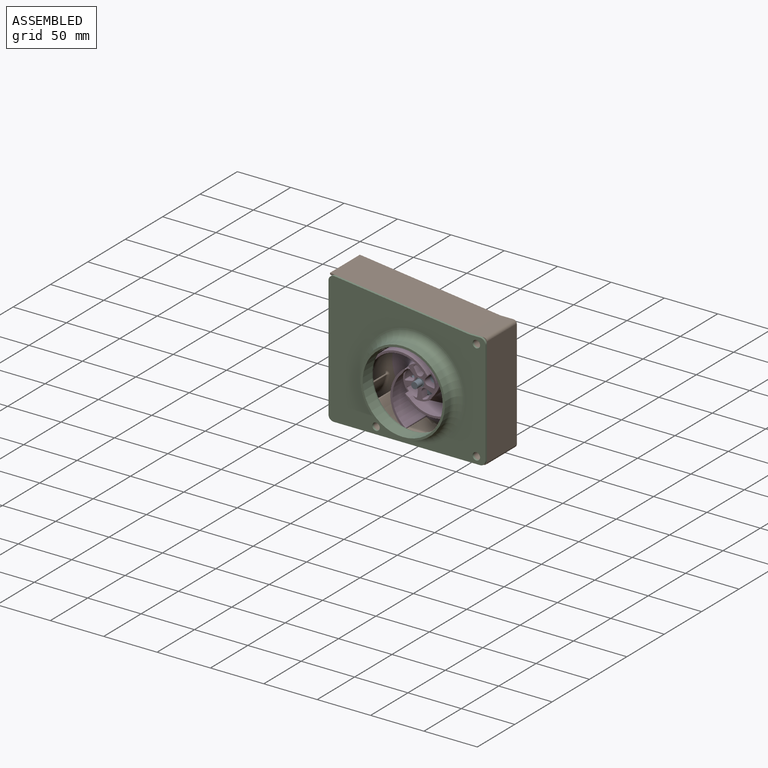
[diagram: assembled view]
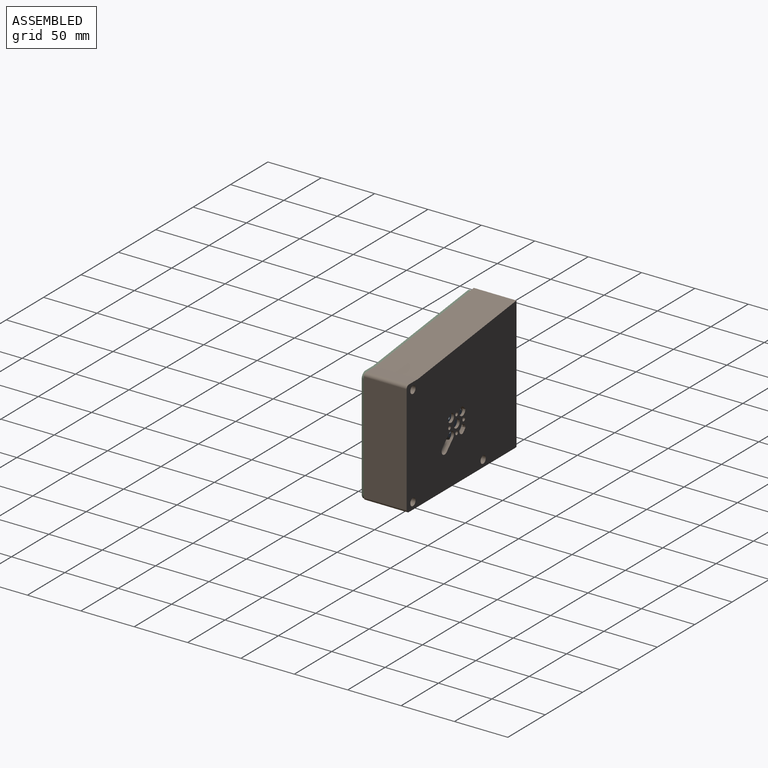
[diagram: assembled view, second angle]
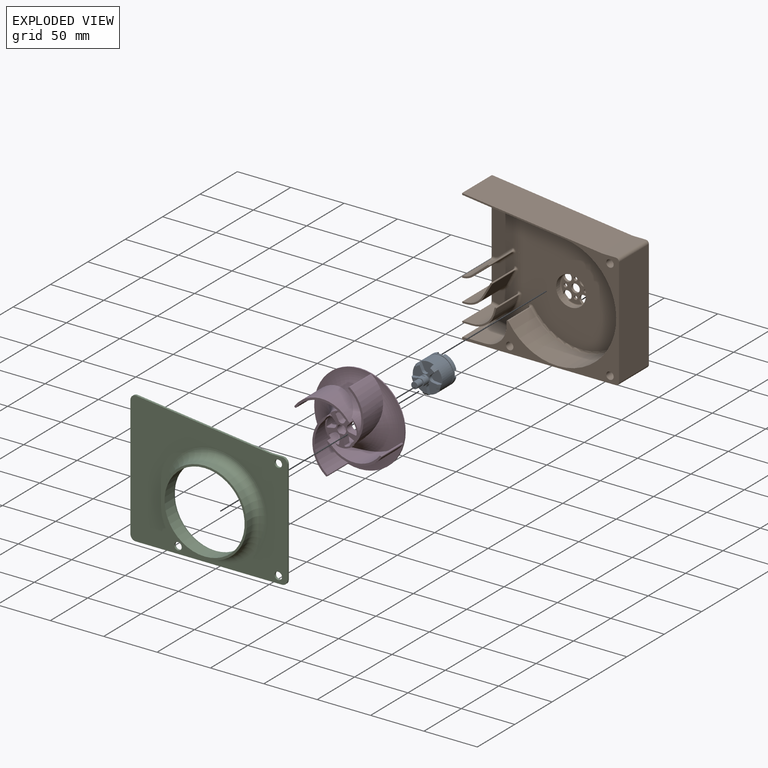
[diagram: exploded view]
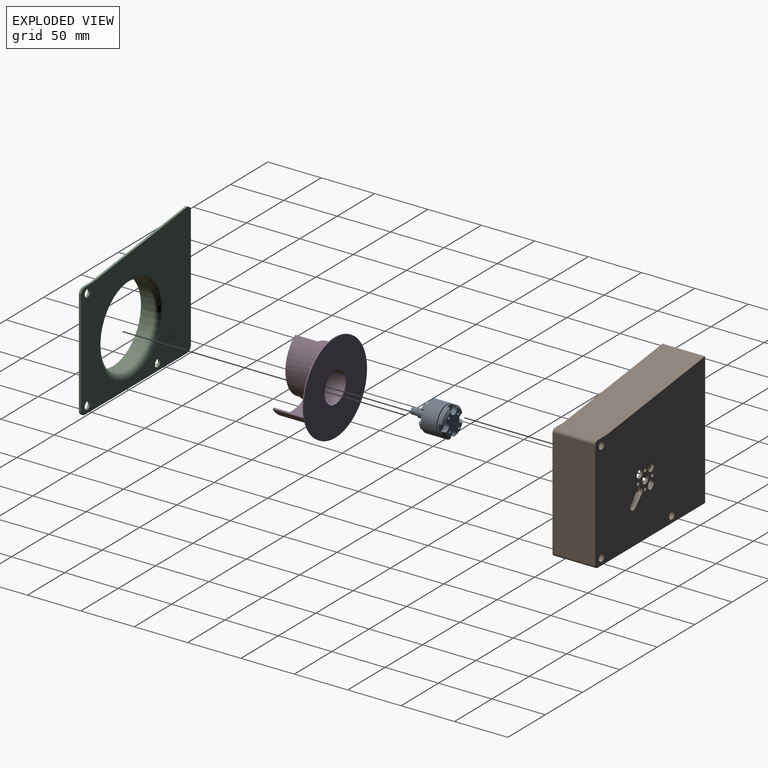
[diagram: exploded view, second angle]
ASSEMBLY  parts=4 mates=3
PART A: 58 faces, bbox 27.7x27.7x38.8 mm
  f0: cone r=13.85mm half-angle=45deg, axis (0,0,1), area 36.5mm2, adj f1,f4,f9,f10
  f1: cylinder r=4mm len=8mm, axis (0,0,-1), area 79.1mm2, adj f0,f2,f9,f10,f11
  f2: plane 8x7.1mm, normal (0,0,-1), area 46.7mm2, adj f1,f10
  f3: cone r=13.85mm half-angle=45deg, axis (0,0,1), area 36.5mm2, adj f4,f7,f9,f10
  f4: cylinder r=4mm len=8mm, axis (0,0,-1), area 79.1mm2, adj f0,f3,f5,f9,f10
  f5: plane 8x7.1mm, normal (0,0,-1), area 46.7mm2, adj f4,f10
  f6: cone r=13.85mm half-angle=45deg, axis (0,0,1), area 36.5mm2, adj f7,f9,f10,f57
  f7: cylinder r=4mm len=8mm, axis (0,0,-1), area 79.1mm2, adj f3,f6,f8,f9,f10
  f8: plane 8x7.1mm, normal (0,0,-1), area 46.7mm2, adj f7,f10
  f9: plane 22.32x22.32mm, normal (0,0,-1), area 293.1mm2, adj f0,f1,f3,f4,f6,f7,f11,f47
  f10: cylinder r=13.85mm len=27.7mm, axis (0,0,1), area 290.6mm2, adj f0,f1,f2,f3,f4,f5,f6,f7
  f11: cone r=13.85mm half-angle=45deg, axis (0,0,1), area 36.5mm2, adj f1,f9,f10,f57
  f12: cone r=11.85mm half-angle=45deg, axis (0,0,-1), area 14.3mm2, adj f13,f19,f32,f40
  f13: plane 6.71x3.5mm, normal (0.99,0.11,0), area 21.6mm2, adj f12,f15,f16,f32,f40
  f14: plane 4.98x4.56mm, normal (-0.74,0.67,0), area 21.6mm2, adj f15,f16,f32,f40,f45
  f15: cylinder r=3.3mm len=5.71mm, axis (0,0,1), area 26.4mm2, adj f13,f14,f16,f32
  f16: plane 11.02x9.73mm, normal (0,0,1), area 72.3mm2, adj f13,f14,f15,f40
  f17: cone r=11.85mm half-angle=45deg, axis (0,0,-1), area 14.3mm2, adj f18,f24,f32,f40
  f18: plane 6.62x3.5mm, normal (0.2,0.98,0), area 21.6mm2, adj f17,f20,f21,f32,f40
  f19: plane 5.87x3.5mm, normal (-0.87,-0.49,0), area 21.6mm2, adj f12,f20,f21,f32,f40
  f20: cylinder r=3.3mm len=4.92mm, axis (0,0,1), area 26.4mm2, adj f18,f19,f21,f32
  f21: plane 10.79x10.57mm, normal (0,0,1), area 72.3mm2, adj f18,f19,f20,f40
  f22: cone r=11.85mm half-angle=45deg, axis (0,0,-1), area 14.3mm2, adj f23,f29,f32,f40
  f23: plane 5.87x3.5mm, normal (-0.87,0.49,0), area 21.6mm2, adj f22,f25,f26,f32,f40
  f24: plane 6.62x3.5mm, normal (0.2,-0.98,0), area 21.6mm2, adj f17,f25,f26,f32,f40
  f25: cylinder r=3.3mm len=4.92mm, axis (0,0,1), area 26.4mm2, adj f23,f24,f26,f32
  f26: plane 10.79x10.57mm, normal (0,0,1), area 72.3mm2, adj f23,f24,f25,f40
  f27: cone r=11.85mm half-angle=45deg, axis (0,0,-1), area 14.3mm2, adj f28,f32,f40,f54
  f28: plane 4.98x4.56mm, normal (-0.74,-0.67,0), area 21.6mm2, adj f27,f30,f31,f32,f40
  f29: plane 6.71x3.5mm, normal (0.99,-0.11,0), area 21.6mm2, adj f22,f30,f31,f32,f40
  f30: cylinder r=3.3mm len=5.71mm, axis (0,0,1), area 26.4mm2, adj f28,f29,f31,f32
  f31: plane 11.02x9.73mm, normal (0,0,1), area 72.3mm2, adj f28,f29,f30,f40
  f32: plane 23.53x22.61mm, normal (0,0,1), area 140.4mm2, adj f12,f13,f14,f15,f17,f18,f19,f20
  f33: cylinder r=6.92mm len=13.85mm, axis (0,0,1), area 34.8mm2, adj f38,f39,f46,f48
  f34: cylinder r=4mm len=8mm, axis (0,0,1), area 135.5mm2, adj f32,f35,f41,f42,f43,f44
  f35: plane 8x7mm, normal (0,0,1), area 19.4mm2, adj f34,f36,f42,f43
  f36: cylinder r=3mm len=7mm, axis (0,0,1), area 131.9mm2, adj f35,f37
  f37: plane 6x6mm, normal (0,0,1), area 28.3mm2, adj f36
  f38: plane 27.7x27.7mm, normal (0,0,1), area 432.6mm2, adj f10,f33,f47,f49,f50,f51
  f39: plane 27.7x27.7mm, normal (0,0,-1), area 452mm2, adj f33,f40
  f40: cylinder r=13.85mm len=27.7mm, axis (0,0,1), area 1302.7mm2, adj f12,f13,f14,f16,f17,f18,f19,f21
  f41: plane 3.87x0.5mm, normal (0,0,1), area 1.3mm2, adj f34,f42
  f42: plane 5x3.87mm, normal (1,0,0), area 19.4mm2, adj f34,f35,f41
  f43: plane 5x3.87mm, normal (-1,0,0), area 19.4mm2, adj f34,f35,f44
  f44: plane 3.87x0.5mm, normal (0,0,1), area 1.3mm2, adj f34,f43
  f45: cone r=11.85mm half-angle=45deg, axis (0,0,-1), area 14.3mm2, adj f14,f32,f40,f53
  f46: cone r=0mm half-angle=59deg, axis (0,0,-1), area 0.2mm2, adj f33,f47
  f47: cylinder r=1.25mm len=6mm, axis (0,0,-1), area 47.1mm2, adj f9,f38,f46
  f48: cone r=0mm half-angle=59deg, axis (0,0,-1), area 0.2mm2, adj f33,f49
  f49: cylinder r=1.25mm len=6mm, axis (0,0,-1), area 47.1mm2, adj f9,f38,f48
  f50: cylinder r=1.25mm len=6mm, axis (0,0,-1), area 47.1mm2, adj f9,f38
  f51: cylinder r=1.25mm len=6mm, axis (0,0,-1), area 47.1mm2, adj f9,f38
  f52: plane 11.59x9.35mm, normal (0,0,1), area 72.3mm2, adj f40,f53,f54,f55
  f53: plane 6.15x3.5mm, normal (0.41,-0.91,0), area 21.6mm2, adj f32,f40,f45,f52,f55
  f54: plane 6.15x3.5mm, normal (0.41,0.91,0), area 21.6mm2, adj f27,f32,f40,f52,f55
  f55: cylinder r=3.3mm len=6mm, axis (0,0,1), area 26.4mm2, adj f32,f52,f53,f54
  f56: plane 8x7.1mm, normal (0,0,-1), area 46.7mm2, adj f10,f57
  f57: cylinder r=4mm len=8mm, axis (0,0,-1), area 79.1mm2, adj f6,f9,f10,f11,f56
PART B: 150 faces, bbox 151x40.7x127.7 mm
  f0: plane 147x124.17mm, normal (0,1,0), area 16445.6mm2, adj f1,f5,f6,f7,f8,f9,f10,f11
  f1: cylinder r=4mm len=6.83mm, axis (0,-1,0), area 31.4mm2, adj f0,f62,f98,f99
  f2: plane 26.39x24.94mm, normal (-0.26,-0.97,0), area 346.7mm2, adj f6,f69,f108,f109,f110,f130,f131,f132
  f3: plane 31.2x24.94mm, normal (-0.26,-0.97,0), area 413.2mm2, adj f6,f69,f121,f122,f123,f124,f147,f148
  f4: plane 112.65x107.15mm, normal (0,-1,0), area 9195.6mm2, adj f61,f69,f70,f71,f72,f73,f74,f80
  f5: plane 130.46x40mm, normal (0.12,0,0.99), area 5257.5mm2, adj f0,f6,f19,f75
  f6: plane 124.12x40.66mm, normal (-1,0,0), area 188.6mm2, adj f0,f2,f3,f5,f19,f27,f35,f36
  f7: plane 143.3x40mm, normal (0,0,-1), area 5732mm2, adj f0,f19,f58,f59
  f8: plane 102x40mm, normal (1,0,0), area 4080mm2, adj f0,f19,f59,f60
  f9: cylinder r=3.5mm len=40mm, axis (0,1,0), area 879.6mm2, adj f0,f19
  f10: cylinder r=3.5mm len=40mm, axis (0,1,0), area 879.6mm2, adj f0,f19
  f11: plane 40x11.1mm, normal (0,0,1), area 444.2mm2, adj f0,f19,f60,f75
  f12: cylinder r=3.5mm len=40mm, axis (0,1,0), area 879.6mm2, adj f0,f19
  f13: cylinder r=54.79mm len=109.17mm, axis (0,1,0), area 6507.2mm2, adj f18,f19,f55,f85
  f14: plane 29.5x0.41mm, normal (0,0,1), area 12.2mm2, adj f19,f55,f57,f83
  f15: plane 29.5x4.3mm, normal (-1,0,0), area 126.9mm2, adj f16,f19,f57,f81
  f16: cylinder r=20mm len=31.68mm, axis (0,1,0), area 942.4mm2, adj f15,f17,f19,f78,f79,f80
  f17: plane 37.24x20.88mm, normal (0,0,1), area 719.4mm2, adj f16,f19,f56,f77
  f18: plane 95.64x37.33mm, normal (-0.12,0,-0.99), area 2959.8mm2, adj f13,f19,f54,f86,f87,f88
  f19: plane 147x124.17mm, normal (0,-1,0), area 2270.6mm2, adj f5,f6,f7,f8,f9,f10,f11,f12
  f20: plane 37.24x9.3mm, normal (0,0,1), area 334.8mm2, adj f26,f27,f53,f109
  f21: plane 37.24x9.3mm, normal (0,0,-1), area 334.8mm2, adj f22,f27,f52,f119
  f22: cylinder r=21.5mm len=34.76mm, axis (0,1,0), area 888.1mm2, adj f21,f23,f27,f117,f118
  f23: plane 29.58x4.15mm, normal (0.97,0,-0.26), area 127.1mm2, adj f22,f27,f51,f116
  f24: plane 29.64x0.1mm, normal (0.26,0,0.97), area 3mm2, adj f27,f50,f51,f114
  f25: plane 30.24x4.15mm, normal (-0.97,0,0.26), area 129.6mm2, adj f26,f27,f50,f112
  f26: cylinder r=20mm len=34.76mm, axis (0,1,0), area 842.6mm2, adj f20,f25,f27,f110,f111
  f27: plane 31.9x21mm, normal (0,-1,0), area 62.8mm2, adj f6,f20,f21,f22,f23,f24,f25,f26
  f28: cylinder r=18.5mm len=36.63mm, axis (0,1,0), area 672.7mm2, adj f29,f34,f35,f123
  f29: plane 37.24x2.3mm, normal (0,0,1), area 85mm2, adj f28,f35,f46,f122
  f30: plane 37.24x2.3mm, normal (0,0,-1), area 85mm2, adj f31,f35,f47,f132
  f31: cylinder r=20mm len=36.63mm, axis (0,1,0), area 714mm2, adj f30,f32,f35,f131
  f32: plane 31.55x13.25mm, normal (0.87,0,-0.5), area 468.4mm2, adj f31,f35,f48,f129,f130
  f33: plane 30.02x0.09mm, normal (0.5,0,0.87), area 3mm2, adj f35,f48,f49,f127
  f34: plane 32.82x13.25mm, normal (-0.87,0,0.5), area 486.5mm2, adj f28,f35,f49,f124,f125
  f35: plane 28.06x24.35mm, normal (0,-1,0), area 58.3mm2, adj f6,f28,f29,f30,f31,f32,f33,f34
  f36: plane 37.43x0.1mm, normal (0,0,-1), area 3.7mm2, adj f6,f37,f42,f149
  f37: cylinder r=16mm len=37.4mm, axis (0,1,0), area 400.6mm2, adj f36,f38,f42,f148
  f38: plane 34.32x14.78mm, normal (0.64,0,-0.77), area 624.3mm2, adj f37,f42,f44,f146,f147
  f39: plane 30.37x0.08mm, normal (0.77,0,0.64), area 3mm2, adj f42,f43,f44,f139
  f40: plane 35.26x14.78mm, normal (-0.64,0,0.77), area 642.5mm2, adj f41,f42,f43,f136
  f41: cylinder r=14.5mm len=37.27mm, axis (0,1,0), area 346.4mm2, adj f40,f42,f45,f135
  f42: plane 25.42x17.46mm, normal (0,-1,0), area 45.8mm2, adj f6,f36,f37,f38,f39,f40,f41,f43
  f43: cylinder r=0.7mm len=31.32mm, axis (0,1,0), area 33.9mm2, adj f39,f40,f42,f137,f138
  f44: cylinder r=0.7mm len=30.43mm, axis (0,1,0), area 33.3mm2, adj f38,f39,f42,f140,f141,f142,f143,f144
  f45: cylinder r=0.7mm len=37.96mm, axis (0,1,0), area 40.3mm2, adj f6,f41,f42,f134
  f46: cylinder r=0.7mm len=37.96mm, axis (0,1,0), area 41.3mm2, adj f6,f29,f35,f121
  f47: cylinder r=0.7mm len=37.96mm, axis (0,-1,0), area 41.3mm2, adj f6,f30,f35,f133
  f48: cylinder r=0.7mm len=30.01mm, axis (0,1,0), area 32.9mm2, adj f32,f33,f35,f128
  f49: cylinder r=0.7mm len=30.78mm, axis (0,1,0), area 33.4mm2, adj f33,f34,f35,f126
  f50: cylinder r=0.7mm len=30.04mm, axis (0,1,0), area 32.8mm2, adj f24,f25,f27,f113
  f51: cylinder r=0.7mm len=29.63mm, axis (0,1,0), area 32.5mm2, adj f23,f24,f27,f115
  f52: cylinder r=0.7mm len=37.96mm, axis (0,-1,0), area 41.3mm2, adj f6,f21,f27,f120
  f53: cylinder r=0.7mm len=37.96mm, axis (0,1,0), area 41.3mm2, adj f6,f20,f27,f108
  f54: cylinder r=0.7mm len=37.96mm, axis (0,-1,0), area 38.2mm2, adj f6,f18,f19,f89
  f55: cylinder r=0.7mm len=29.5mm, axis (0,1,0), area 20.8mm2, adj f13,f14,f19,f84
  f56: cylinder r=0.7mm len=37.96mm, axis (0,1,0), area 41.3mm2, adj f6,f17,f19,f76
  f57: cylinder r=0.7mm len=29.5mm, axis (0,1,0), area 32.4mm2, adj f14,f15,f19,f82
  f58: cylinder r=0.7mm len=40mm, axis (0,1,0), area 44mm2, adj f0,f6,f7,f19
  f59: cylinder r=3mm len=40mm, axis (0,-1,0), area 188.5mm2, adj f0,f7,f8,f19
  f60: cylinder r=3mm len=40mm, axis (0,1,0), area 188.5mm2, adj f0,f8,f11,f19
  f61: cylinder r=14mm len=28mm, axis (0,-1,0), area 462.6mm2, adj f0,f4,f90,f91,f92,f93,f94,f95
  f62: plane 26x26mm, normal (0,-1,0), area 279.7mm2, adj f1,f63,f64,f65,f66,f90,f91,f92
  f63: cylinder r=1.7mm len=3.4mm, axis (0,-1,0), area 26.7mm2, adj f0,f62
  f64: cylinder r=1.7mm len=3.4mm, axis (0,-1,0), area 26.7mm2, adj f0,f62
  f65: cylinder r=1.7mm len=3.4mm, axis (0,-1,0), area 26.7mm2, adj f0,f62
  f66: cylinder r=1.7mm len=3.4mm, axis (0,-1,0), area 26.7mm2, adj f0,f62
  f67: plane 24.94x13.23mm, normal (-0.26,-0.97,0), area 229.9mm2, adj f6,f69,f76,f77,f78,f118,f119,f120
  f68: plane 65.15x24.94mm, normal (-0.26,-0.97,0), area 1459mm2, adj f6,f74,f88,f89,f134,f135,f136,f137
  f69: cylinder r=40mm len=63.73mm, axis (0,0,-1), area 500.9mm2, adj f2,f3,f4,f67,f70,f79,f111,f112
  f70: bspline ~7.66x0.74mm, area 2.9mm2, adj f4,f69,f71,f144
  f71: bspline ~10.25x1.34mm, area 4.5mm2, adj f4,f70,f72,f143
  f72: bspline ~11.54x4.83mm, area 0.9mm2, adj f4,f71,f73,f142
  f73: bspline ~10.39x1.37mm, area 2.6mm2, adj f4,f72,f74,f141
  f74: cylinder r=40mm len=47.75mm, axis (0,0,-1), area 486.4mm2, adj f4,f68,f73,f87,f138,f139,f140
  f75: cylinder r=20mm len=40mm, axis (0,-1,0), area 97.7mm2, adj f0,f5,f11,f19
  f76: bspline ~2.7x2.7mm, area 4.1mm2, adj f6,f56,f67,f77
  f77: cylinder r=2mm len=21.39mm, axis (-0.97,0.26,0), area 67.9mm2, adj f17,f67,f76,f78
  f78: bspline ~3.43x2.69mm, area 9.8mm2, adj f16,f67,f77,f79
  f79: bspline ~15.66x9.88mm, area 40.8mm2, adj f16,f69,f78,f80
  f80: torus R=18mm, axis (0,-1,0), area 42.9mm2, adj f4,f16,f79,f81
  f81: cylinder r=2mm len=4.3mm, axis (0,0,1), area 13.5mm2, adj f4,f15,f80,f82
  f82: torus R=2.7mm, axis (0,-1,0), area 7mm2, adj f4,f57,f81,f83
  f83: cylinder r=2mm len=2mm, axis (1,0,0), area 1.3mm2, adj f4,f14,f82,f84
  f84: torus R=2.7mm, axis (0,-1,0), area 4.5mm2, adj f4,f55,f83,f85
  f85: torus R=52.79mm, axis (0,-1,0), area 683.8mm2, adj f4,f13,f84,f86
  f86: cylinder r=2mm len=61.02mm, axis (-0.99,0,0.12), area 192.4mm2, adj f4,f18,f85,f87
  f87: bspline ~10.82x3.35mm, area 33.3mm2, adj f18,f74,f86,f88
  f88: cylinder r=2mm len=24.37mm, axis (-0.96,0.26,0.12), area 77.2mm2, adj f18,f68,f87,f89
  f89: bspline ~2.68x2.56mm, area 3.5mm2, adj f6,f54,f68,f88
  f90: cylinder r=4mm len=8mm, axis (0,-1,0), area 49.9mm2, adj f0,f61,f62,f94,f95
  f91: cylinder r=4mm len=8mm, axis (0,-1,0), area 49.9mm2, adj f0,f61,f62,f93,f94
  f92: cylinder r=4mm len=8mm, axis (0,-1,0), area 49.9mm2, adj f0,f61,f62,f93,f96
  f93: torus R=13mm, axis (0,-1,0), area 23.6mm2, adj f61,f62,f91,f92
  f94: torus R=13mm, axis (0,-1,0), area 23.6mm2, adj f61,f62,f90,f91
  f95: torus R=13mm, axis (0,-1,0), area 22.2mm2, adj f61,f62,f90,f98
  f96: torus R=13mm, axis (0,-1,0), area 22.2mm2, adj f61,f62,f92,f99
  f97: plane 5.09x5.09mm, normal (0,1,0), area 11.1mm2, adj f102,f104,f105,f106
  f98: plane 8.62x8.62mm, normal (0.71,0,0.71), area 28mm2, adj f0,f1,f61,f62,f95,f100,f103,f104
  f99: plane 8.62x8.62mm, normal (-0.71,0,-0.71), area 28mm2, adj f0,f1,f61,f62,f96,f100,f106,f107
  f100: cylinder r=4mm len=6.83mm, axis (0,1,0), area 25.1mm2, adj f0,f98,f99,f105
  f101: cylinder r=4mm len=8mm, axis (0,1,0), area 62.8mm2, adj f0,f62
  f102: torus R=18mm, axis (0,1,0), area 13mm2, adj f4,f97,f103,f107
  f103: bspline ~7.75x7.04mm, area 24.5mm2, adj f4,f61,f98,f102,f104
  f104: cylinder r=3mm len=5.5mm, axis (-0.71,0,0.71), area 22.5mm2, adj f97,f98,f103,f105
  f105: torus R=1mm, axis (0,1,0), area 43.1mm2, adj f97,f100,f104,f106
  f106: cylinder r=3mm len=5.5mm, axis (0.71,0,-0.71), area 22.5mm2, adj f97,f99,f105,f107
  f107: bspline ~7.75x7.04mm, area 24.5mm2, adj f4,f61,f99,f102,f106
  f108: bspline ~2.7x2.7mm, area 4.1mm2, adj f2,f6,f53,f109
  f109: cylinder r=2mm len=9.82mm, axis (-0.97,0.26,0), area 30.2mm2, adj f2,f20,f108,f110
  f110: bspline ~16.02x9.23mm, area 53.4mm2, adj f2,f26,f109,f111
  f111: bspline ~10.92x6.03mm, area 20mm2, adj f26,f69,f110,f112
  f112: bspline ~4.67x2.67mm, area 12.1mm2, adj f25,f69,f111,f113
  f113: bspline ~3.78x2.68mm, area 6.7mm2, adj f50,f69,f112,f114
  f114: bspline ~2x1.96mm, area 0.3mm2, adj f24,f69,f113,f115
  f115: bspline ~3.97x2.74mm, area 7mm2, adj f51,f69,f114,f116
  f116: bspline ~4.68x3.11mm, area 13.8mm2, adj f23,f69,f115,f117
  f117: bspline ~16.77x11.98mm, area 48.1mm2, adj f22,f69,f116,f118
  f118: bspline ~14.94x6.52mm, area 50.1mm2, adj f22,f67,f117,f119
  f119: cylinder r=2mm len=9.82mm, axis (-0.97,0.26,0), area 30.2mm2, adj f21,f67,f118,f120
  f120: bspline ~2.7x2.7mm, area 4.1mm2, adj f6,f52,f67,f119
  f121: bspline ~2.7x2.7mm, area 4.1mm2, adj f3,f6,f46,f122
  f122: cylinder r=2mm len=2.82mm, axis (-0.97,0.26,0), area 7.5mm2, adj f3,f29,f121,f123
  f123: bspline ~16.02x10.25mm, area 54.9mm2, adj f3,f28,f122,f124
  f124: cylinder r=2mm len=13.35mm, axis (0.5,-0.13,0.86), area 38.7mm2, adj f3,f34,f123,f125
  f125: bspline ~2.07x1.9mm, area 2.8mm2, adj f34,f69,f124,f126
  f126: bspline ~4.21x2.83mm, area 6.9mm2, adj f49,f69,f125,f127
  f127: bspline ~1.99x1.78mm, area 0.3mm2, adj f33,f69,f126,f128
  f128: bspline ~4.43x2.75mm, area 7.2mm2, adj f48,f69,f127,f129
  f129: bspline ~10.15x7.28mm, area 36.7mm2, adj f32,f69,f128,f130
  f130: cylinder r=2mm len=5.13mm, axis (-0.5,0.13,-0.86), area 17.2mm2, adj f2,f32,f129,f131
  f131: bspline ~24.68x15.37mm, area 75.3mm2, adj f2,f31,f130,f132
  f132: cylinder r=2mm len=2.82mm, axis (-0.97,0.26,0), area 7.5mm2, adj f2,f30,f131,f133
  f133: bspline ~2.7x2.7mm, area 4.1mm2, adj f2,f6,f47,f132
  f134: bspline ~2.7x2.62mm, area 3.9mm2, adj f6,f45,f68,f135
  f135: bspline ~8.78x4.91mm, area 27.4mm2, adj f41,f68,f134,f136
  f136: cylinder r=2mm len=15.59mm, axis (0.75,-0.2,0.63), area 55.3mm2, adj f40,f68,f135,f137
  f137: bspline ~2.33x2.15mm, area 2.8mm2, adj f43,f68,f136,f138
  f138: bspline ~2.85x2.63mm, area 4.5mm2, adj f43,f74,f137,f139
  f139: bspline ~2x1.97mm, area 0.3mm2, adj f39,f74,f138,f140
  f140: bspline ~2.53x2.44mm, area 2mm2, adj f44,f74,f139,f141
  f141: bspline ~2.45x2.44mm, area 0.5mm2, adj f44,f73,f140,f142
  f142: bspline ~2.42x2.39mm, area 0.2mm2, adj f44,f72,f141,f143
  f143: bspline ~2.44x2.41mm, area 1.4mm2, adj f44,f71,f142,f144
  f144: bspline ~2.44x2.42mm, area 0.5mm2, adj f44,f70,f143,f145
  f145: bspline ~2.64x2.46mm, area 2.8mm2, adj f44,f69,f144,f146
  f146: bspline ~3.74x3.24mm, area 9.2mm2, adj f38,f69,f145,f147
  f147: cylinder r=2mm len=14.55mm, axis (-0.75,0.2,-0.63), area 59mm2, adj f3,f38,f146,f148
  f148: bspline ~12.09x5.74mm, area 39.9mm2, adj f3,f37,f147,f149
  f149: cylinder r=2mm len=2.1mm, axis (-0.97,0.26,0), area 1.4mm2, adj f3,f6,f36,f148
PART C: 19 faces, bbox 147x17x130.6 mm
  f0: plane 126.06x15.48mm, normal (0.12,0,0.99), area 254mm2, adj f7,f8,f9,f18
  f1: plane 113.52x2mm, normal (-1,0,0), area 227mm2, adj f8,f9,f15,f18
  f2: plane 137x2mm, normal (0,0,-1), area 274mm2, adj f8,f9,f15,f16
  f3: plane 98x2mm, normal (1,0,0), area 196mm2, adj f8,f9,f16,f17
  f4: cylinder r=3.5mm len=7mm, axis (0,-1,0), area 44mm2, adj f8,f9
  f5: cylinder r=3.5mm len=7mm, axis (0,-1,0), area 44mm2, adj f8,f9
  f6: cylinder r=3.5mm len=7mm, axis (0,-1,0), area 44mm2, adj f8,f9
  f7: plane 10.33x2mm, normal (0,0,1), area 20.7mm2, adj f0,f8,f9,f17
  f8: plane 147x123.52mm, normal (0,1,0), area 11127.3mm2, adj f0,f1,f2,f3,f4,f5,f6,f7
  f9: plane 147x123.52mm, normal (0,-1,0), area 9713.5mm2, adj f0,f1,f2,f3,f4,f5,f6,f7
  f10: cylinder r=37.5mm len=75mm, axis (0,-1,0), area 2827.4mm2, adj f12,f14
  f11: cylinder r=39.5mm len=79mm, axis (0,1,0), area 1737.3mm2, adj f12,f13
  f12: plane 79x79mm, normal (0,-1,0), area 483.8mm2, adj f10,f11
  f13: torus R=47.5mm, axis (0,-1,0), area 3348.3mm2, adj f9,f11
  f14: torus R=42.5mm, axis (0,-1,0), area 1940.2mm2, adj f8,f10
  f15: cylinder r=5mm len=5mm, axis (0,-1,0), area 15.7mm2, adj f1,f2,f8,f9
  f16: cylinder r=5mm len=5mm, axis (0,1,0), area 15.7mm2, adj f2,f3,f8,f9
  f17: cylinder r=5mm len=5mm, axis (0,-1,0), area 15.7mm2, adj f3,f7,f8,f9
  f18: cylinder r=5mm len=5.61mm, axis (0,1,0), area 16.9mm2, adj f0,f1,f8,f9
PART D: 77 faces, bbox 85x85x30 mm
  f0: cylinder r=29.64mm len=45.42mm, axis (0,0,1), area 1151.4mm2, adj f3,f5,f21,f25,f45
  f1: plane 85x85mm, normal (0,0,-1), area 5049.9mm2, adj f2,f45
  f2: cylinder r=42.5mm len=85mm, axis (0,0,-1), area 267mm2, adj f1,f3
  f3: revolved ~84.86x84.86mm, area 5145.9mm2, adj f0,f2,f4,f5,f6,f8,f9,f11
  f4: revolved ~49.02x36.34mm, area 666.8mm2, adj f3,f5,f16,f19,f23
  f5: plane 31x31mm, normal (0,0,1), area 315.8mm2, adj f0,f3,f4,f7,f8,f9,f12,f13
  f6: cylinder r=1mm len=29mm, axis (0,0,1), area 91mm2, adj f3,f8,f9,f10
  f7: plane 5x0.74mm, normal (0.57,-0.82,0), area 4.5mm2, adj f5,f8,f10,f45
  f8: cylinder r=31.64mm len=51.23mm, axis (0,0,1), area 1345.3mm2, adj f3,f5,f6,f7,f10
  f9: cylinder r=29.64mm len=45.42mm, axis (0,0,1), area 1151.4mm2, adj f3,f5,f6,f10,f45
  f10: plane 51.43x14.26mm, normal (0,0,1), area 114.7mm2, adj f6,f7,f8,f9,f45
  f11: cylinder r=1mm len=29mm, axis (0,0,1), area 91mm2, adj f3,f13,f14,f15
  f12: plane 5x0.74mm, normal (0.82,0.57,0), area 4.5mm2, adj f5,f13,f15,f45
  f13: cylinder r=31.64mm len=51.23mm, axis (0,0,1), area 1345.3mm2, adj f3,f5,f11,f12,f15
  f14: cylinder r=29.64mm len=45.89mm, axis (0,0,1), area 1152.1mm2, adj f3,f5,f11,f15,f45,f46,f48
  f15: plane 51.43x14.26mm, normal (0,0,1), area 114.7mm2, adj f11,f12,f13,f14,f45
  f16: cylinder r=1mm len=29mm, axis (0,0,1), area 91mm2, adj f3,f4,f18,f19,f20
  f17: plane 5x1.64mm, normal (-0.57,0.82,0), area 5.6mm2, adj f5,f18,f19,f20,f75,f76
  f18: cylinder r=31.64mm len=51.23mm, axis (0,0,1), area 1345.3mm2, adj f3,f5,f16,f17,f20
  f19: cylinder r=29.64mm len=48mm, axis (0,0,1), area 1155.5mm2, adj f4,f5,f16,f17,f20,f75,f76
  f20: plane 51.43x14.26mm, normal (0,0,1), area 114.7mm2, adj f16,f17,f18,f19,f76
  f21: cylinder r=1mm len=29mm, axis (0,0,1), area 91mm2, adj f0,f3,f23,f25
  f22: plane 5x1.64mm, normal (-0.82,-0.57,0), area 5.6mm2, adj f5,f23,f24,f25,f26,f45
  f23: cylinder r=31.64mm len=51.23mm, axis (0,0,1), area 1341.3mm2, adj f3,f4,f5,f21,f22,f25
  f24: cylinder r=29.64mm len=1mm, axis (0,0,1), area 0.3mm2, adj f5,f22,f26,f47
  f25: plane 51.43x14.26mm, normal (0,0,1), area 114.7mm2, adj f0,f21,f22,f23,f45
  f26: plane 1.71x1.21mm, normal (0,0,1), area 0.7mm2, adj f22,f24,f45,f47
  f27: plane 4.16x0.55mm, normal (0,0,-1), area 1.5mm2, adj f72,f74
  f28: plane 4.16x0.55mm, normal (0,0,-1), area 1.5mm2, adj f72,f73
  f29: bspline ~1.41x1.02mm, area 0.5mm2, adj f30,f45,f59
  f30: torus R=13.1mm, axis (0,0,-1), area 8.2mm2, adj f29,f32,f44,f45,f54,f59
  f31: bspline ~1.23x1.02mm, area 0.5mm2, adj f33,f45,f58
  f32: bspline ~1.19x1.1mm, area 0.5mm2, adj f30,f45,f54
  f33: torus R=13.1mm, axis (0,0,-1), area 8.2mm2, adj f31,f34,f44,f45,f58,f63
  f34: bspline ~1.24x1.04mm, area 0.5mm2, adj f33,f45,f63
  f35: bspline ~1.45x1.02mm, area 0.5mm2, adj f36,f45,f47
  f36: torus R=13.1mm, axis (0,0,-1), area 8.2mm2, adj f35,f38,f44,f45,f47,f49
  f37: bspline ~1.41x1.02mm, area 0.5mm2, adj f39,f45,f48
  f38: bspline ~1.34x1.1mm, area 0.5mm2, adj f36,f45,f49
  f39: torus R=13.1mm, axis (0,0,-1), area 8.2mm2, adj f37,f40,f44,f45,f48,f68
  f40: bspline ~1.25x1.1mm, area 0.5mm2, adj f39,f45,f68
  f41: bspline ~1.34x1.16mm, area 0.5mm2, adj f42,f45,f50
  f42: torus R=13.1mm, axis (0,0,-1), area 8.2mm2, adj f41,f43,f44,f45,f50,f67
  f43: bspline ~1.45x1.03mm, area 0.5mm2, adj f42,f45,f67
  f44: plane 25.99x24.98mm, normal (0,0,-1), area 191.2mm2, adj f30,f33,f36,f39,f42,f47,f48,f49
  f45: cylinder r=14.1mm len=30mm, axis (0,0,1), area 1980.6mm2, adj f0,f1,f5,f7,f9,f10,f12,f14
  f46: plane 1.15x0.67mm, normal (0,0,1), area 0.1mm2, adj f14,f45,f48
  f47: cylinder r=1mm len=8.44mm, axis (0,0,1), area 13.8mm2, adj f5,f24,f26,f35,f36,f44,f45,f57
  f48: cylinder r=1mm len=8.44mm, axis (0,0,1), area 12.9mm2, adj f5,f14,f37,f39,f44,f45,f46,f65
  f49: cylinder r=1mm len=7.44mm, axis (0,0,1), area 12.2mm2, adj f5,f36,f38,f44,f45,f52
  f50: cylinder r=1mm len=7.44mm, axis (0,0,1), area 12.2mm2, adj f5,f41,f42,f44,f45,f53
  f51: cylinder r=3.4mm len=7mm, axis (0,0,1), area 51.5mm2, adj f5,f44,f52,f53
  f52: plane 7x4.74mm, normal (-0.88,-0.47,0), area 37.7mm2, adj f5,f44,f49,f51
  f53: plane 7x4.77mm, normal (0.88,-0.47,0), area 37.7mm2, adj f5,f44,f50,f51
  f54: cylinder r=1mm len=7.44mm, axis (0,0,1), area 12.2mm2, adj f5,f30,f32,f44,f45,f56
  f55: cylinder r=3.4mm len=7mm, axis (0,0,1), area 51.5mm2, adj f5,f44,f56,f57
  f56: plane 7x5.3mm, normal (0.18,-0.98,0), area 37.7mm2, adj f5,f44,f54,f55
  f57: plane 7x3.86mm, normal (0.72,0.7,0), area 37.7mm2, adj f5,f44,f47,f55
  f58: cylinder r=1mm len=7.44mm, axis (0,0,1), area 12.2mm2, adj f5,f31,f33,f44,f45,f61
  f59: cylinder r=1mm len=7.44mm, axis (0,0,1), area 12.2mm2, adj f5,f29,f30,f44,f45,f62
  f60: cylinder r=3.4mm len=7mm, axis (0,0,1), area 51.5mm2, adj f5,f44,f61,f62
  f61: plane 7x5.34mm, normal (0.99,-0.13,0), area 37.7mm2, adj f5,f44,f58,f60
  f62: plane 7x4.83mm, normal (-0.44,0.9,0), area 37.7mm2, adj f5,f44,f59,f60
  f63: cylinder r=1mm len=7.44mm, axis (0,0,1), area 12.2mm2, adj f5,f33,f34,f44,f45,f66
  f64: cylinder r=3.4mm len=7mm, axis (0,0,1), area 51.5mm2, adj f5,f44,f65,f66
  f65: plane 7x4.86mm, normal (0.43,0.9,0), area 37.7mm2, adj f5,f44,f48,f64
  f66: plane 7x5.33mm, normal (-0.99,-0.14,0), area 37.7mm2, adj f5,f44,f63,f64
  f67: cylinder r=1mm len=7.44mm, axis (0,0,1), area 12.2mm2, adj f5,f42,f43,f44,f45,f70
  f68: cylinder r=1mm len=7.44mm, axis (0,0,1), area 12.2mm2, adj f5,f39,f40,f44,f45,f71
  f69: cylinder r=3.4mm len=7mm, axis (0,0,1), area 51.5mm2, adj f5,f44,f70,f71
  f70: plane 7x3.9mm, normal (-0.72,0.69,0), area 37.7mm2, adj f5,f44,f67,f69
  f71: plane 7x5.31mm, normal (-0.17,-0.99,0), area 37.7mm2, adj f5,f44,f68,f69
  f72: cylinder r=4.2mm len=8.4mm, axis (0,0,-1), area 145.6mm2, adj f5,f27,f28,f44,f73,f74
  f73: plane 4.5x4.16mm, normal (0,1,0), area 18.7mm2, adj f5,f28,f72
  f74: plane 4.5x4.16mm, normal (0,-1,0), area 18.7mm2, adj f5,f27,f72
  f75: plane 3.48x3.18mm, normal (0,0,1), area 2.5mm2, adj f17,f19,f76
  f76: cylinder r=14.1mm len=4mm, axis (0,0,1), area 17.3mm2, adj f17,f19,f20,f75
PLACE A rot(axis=(0.58,-0.58,0.58),120deg) t=(0,4.5,0)mm
PLACE B at identity fixed
PLACE C t=(0,-35,0)mm
PLACE D rot(axis=(0,-0.71,0.71),180deg) t=(0,-2.3,0)mm
MATE fastened B.f101 <-> A.f0  axis (0,-1,0) through (0,4.5,0)mm
MATE fastened A.f0 <-> D.f30  axis (0,-1,0) through (0,-20.3,0)mm
MATE fastened C.f4 <-> B.f12  axis (0,1,0) through (58.5,-33,-44)mm
